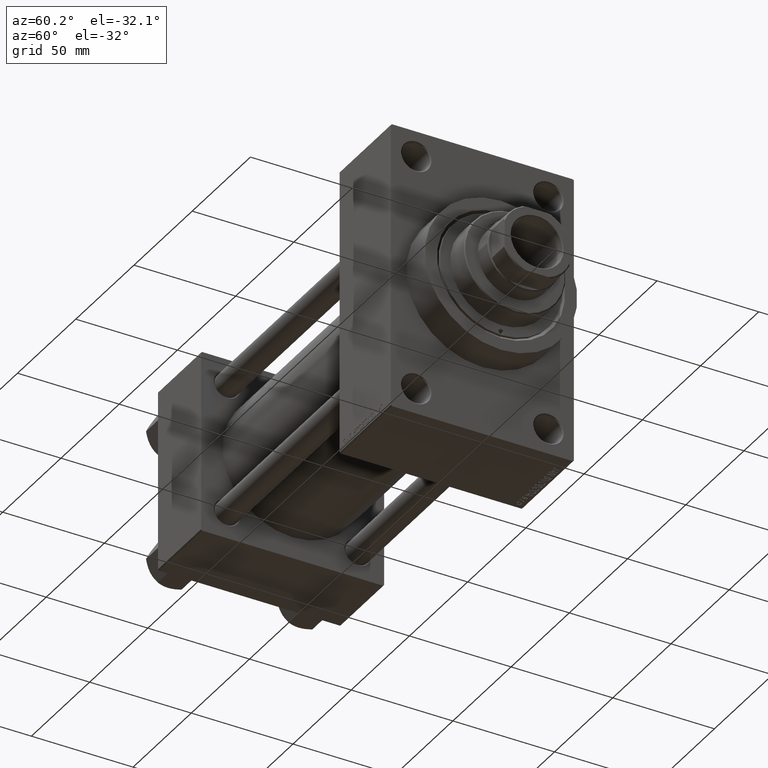
[diagram: clean part render]
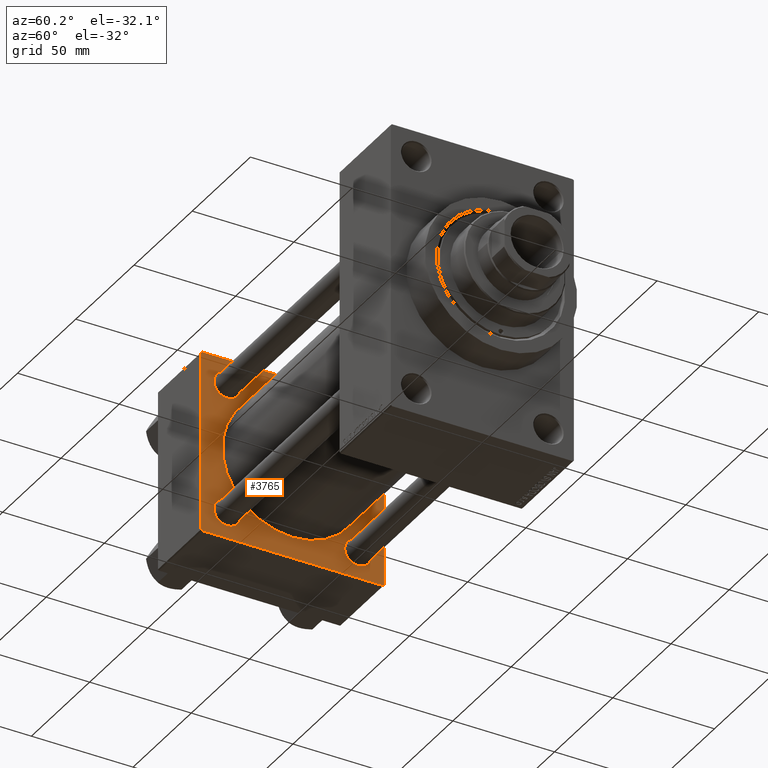
[diagram: same view with one face highlighted and labeled with its STEP entity id]
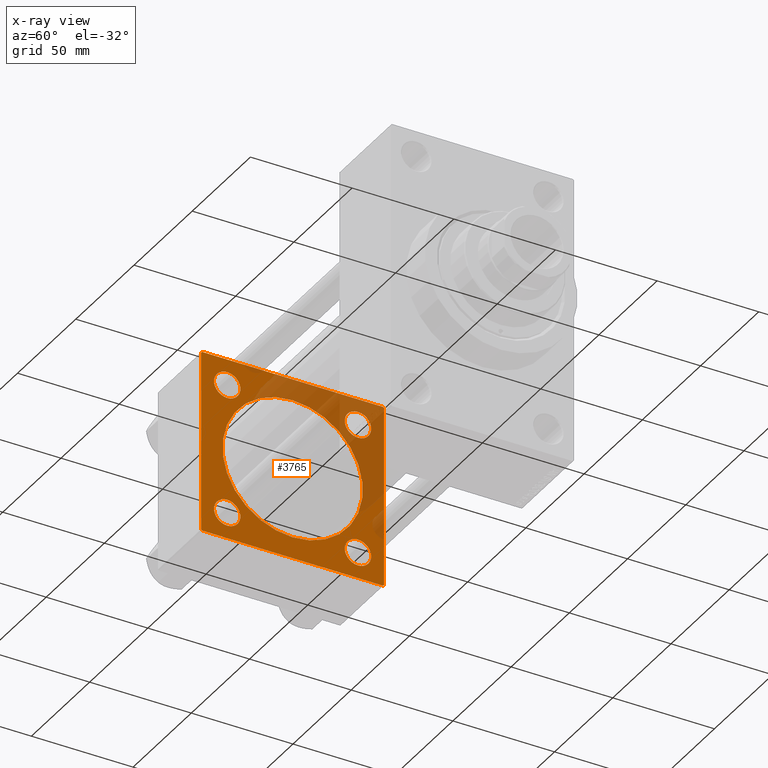
[diagram: x-ray of the same camera — body ghosted, the highlighted face saturated]
A machine part, auxiliary view. The second image highlights one B-rep face of the part: STEP entity #3765.
The next image is the same camera in x-ray: the body ghosted, the highlighted face saturated — about 33% of this face is hidden behind the body in this view.
In plain terms, the highlighted planar face has unit normal (-1, 0, 0).
Its self-contained STEP definition (entity closure, byte-faithful):
#116 = EDGE_CURVE ( 'NONE', #11362, #45274, #21560, .T. ) ;
#128 = ORIENTED_EDGE ( 'NONE', *, *, #8245, .F. ) ;
#181 = VERTEX_POINT ( 'NONE', #14818 ) ;
#754 = CIRCLE ( 'NONE', #28349, 34.50000000000000000 ) ;
#1284 = VERTEX_POINT ( 'NONE', #5814 ) ;
#1612 = CARTESIAN_POINT ( 'NONE',  ( 37.00000000000000000, 44.49999999999998579, 45.00000000000001421 ) ) ;
#1753 = AXIS2_PLACEMENT_3D ( 'NONE', #37219, #26642, #7959 ) ;
#1837 = DIRECTION ( 'NONE',  ( 1.000000000000000000, -0.000000000000000000, 0.000000000000000000 ) ) ;
#2292 = VECTOR ( 'NONE', #23799, 1000.000000000000114 ) ;
#2402 = VERTEX_POINT ( 'NONE', #23508 ) ;
#2668 = LINE ( 'NONE', #31222, #34024 ) ;
#2913 = DIRECTION ( 'NONE',  ( -1.000000000000000000, 0.000000000000000000, -0.000000000000000000 ) ) ;
#2963 = CARTESIAN_POINT ( 'NONE',  ( 37.00000000000000000, -32.14999999999997726, 32.15000000000001279 ) ) ;
#3623 = EDGE_CURVE ( 'NONE', #18095, #22669, #6383, .T. ) ;
#3765 = ADVANCED_FACE ( 'NONE', ( #10485, #46923, #18156, #36131, #47168, #6415 ), #32054, .F. ) ;
#4691 = CARTESIAN_POINT ( 'NONE',  ( 37.00000000000000000, -45.00000000000000000, -44.49999999999995737 ) ) ;
#5356 = EDGE_LOOP ( 'NONE', ( #45762, #17646 ) ) ;
#5814 = CARTESIAN_POINT ( 'NONE',  ( 37.00000000000000000, -45.00000000000000711, 44.49999999999997158 ) ) ;
#5848 = CIRCLE ( 'NONE', #34177, 6.500000000000033751 ) ;
#6050 = DIRECTION ( 'NONE',  ( -0.000000000000000000, -0.7071067811865425767, -0.7071067811865524577 ) ) ;
#6054 = CARTESIAN_POINT ( 'NONE',  ( 37.00000000000000000, -32.14999999999997726, -32.15000000000001279 ) ) ;
#6158 = AXIS2_PLACEMENT_3D ( 'NONE', #8517, #23142, #37771 ) ;
#6352 = EDGE_LOOP ( 'NONE', ( #7841, #7130 ) ) ;
#6377 = EDGE_CURVE ( 'NONE', #27571, #45890, #40583, .T. ) ;
#6383 = CIRCLE ( 'NONE', #12495, 6.500000000000033751 ) ;
#6415 = FACE_OUTER_BOUND ( 'NONE', #20793, .T. ) ;
#6783 = EDGE_CURVE ( 'NONE', #45890, #1284, #2668, .T. ) ;
#7130 = ORIENTED_EDGE ( 'NONE', *, *, #37662, .F. ) ;
#7199 = CARTESIAN_POINT ( 'NONE',  ( 37.00000000000000711, -2.602085213965210642E-15, 0.000000000000000000 ) ) ;
#7297 = CARTESIAN_POINT ( 'NONE',  ( 37.00000000000000000, -44.49999999999998579, -45.00000000000000000 ) ) ;
#7841 = ORIENTED_EDGE ( 'NONE', *, *, #20945, .F. ) ;
#7959 = DIRECTION ( 'NONE',  ( 0.000000000000000000, 0.000000000000000000, 1.000000000000000000 ) ) ;
#8245 = EDGE_CURVE ( 'NONE', #20188, #29826, #45051, .T. ) ;
#8517 = CARTESIAN_POINT ( 'NONE',  ( 37.00000000000000000, -32.14999999999997726, -32.15000000000001279 ) ) ;
#8837 = VECTOR ( 'NONE', #26336, 1000.000000000000000 ) ;
#8986 = VERTEX_POINT ( 'NONE', #38809 ) ;
#9966 = LINE ( 'NONE', #17628, #18679 ) ;
#10485 = FACE_BOUND ( 'NONE', #23896, .T. ) ;
#10826 = CARTESIAN_POINT ( 'NONE',  ( 37.00000000000000000, 44.99999999999998579, 45.00000000000001421 ) ) ;
#11362 = VERTEX_POINT ( 'NONE', #46404 ) ;
#11672 = ORIENTED_EDGE ( 'NONE', *, *, #20415, .T. ) ;
#11913 = ORIENTED_EDGE ( 'NONE', *, *, #22182, .T. ) ;
#12495 = AXIS2_PLACEMENT_3D ( 'NONE', #13850, #47183, #39043 ) ;
#13429 = VERTEX_POINT ( 'NONE', #29760 ) ;
#13710 = DIRECTION ( 'NONE',  ( 0.000000000000000000, 0.000000000000000000, 1.000000000000000000 ) ) ;
#13807 = CIRCLE ( 'NONE', #6158, 6.500000000000033751 ) ;
#13817 = EDGE_LOOP ( 'NONE', ( #25705, #26958 ) ) ;
#13836 = DIRECTION ( 'NONE',  ( -0.000000000000000000, 0.000000000000000000, 1.000000000000000000 ) ) ;
#13850 = CARTESIAN_POINT ( 'NONE',  ( 37.00000000000000000, -32.14999999999997726, 32.15000000000001279 ) ) ;
#14452 = CARTESIAN_POINT ( 'NONE',  ( 37.00000000000000000, -32.14999999999997726, 25.64999999999997726 ) ) ;
#14510 = CIRCLE ( 'NONE', #41316, 6.500000000000033751 ) ;
#14529 = CARTESIAN_POINT ( 'NONE',  ( 37.00000000000000000, 32.14999999999999147, -32.15000000000000568 ) ) ;
#14662 = CARTESIAN_POINT ( 'NONE',  ( 37.00000000000000000, -32.14999999999997726, 38.65000000000004832 ) ) ;
#14818 = CARTESIAN_POINT ( 'NONE',  ( 37.00000000000000000, 32.14999999999999147, 25.64999999999997016 ) ) ;
#16911 = ORIENTED_EDGE ( 'NONE', *, *, #19972, .T. ) ;
#17628 = CARTESIAN_POINT ( 'NONE',  ( 37.00000000000000000, 44.49999999999998579, 45.00000000000001421 ) ) ;
#17646 = ORIENTED_EDGE ( 'NONE', *, *, #22518, .T. ) ;
#18095 = VERTEX_POINT ( 'NONE', #14452 ) ;
#18156 = FACE_BOUND ( 'NONE', #27096, .T. ) ;
#18189 = CARTESIAN_POINT ( 'NONE',  ( 37.00000000000000000, 32.14999999999999147, -32.15000000000000568 ) ) ;
#18679 = VECTOR ( 'NONE', #27944, 1000.000000000000114 ) ;
#19017 = CARTESIAN_POINT ( 'NONE',  ( 37.00000000000000000, 44.49999999999998579, -44.99999999999998579 ) ) ;
#19613 = CARTESIAN_POINT ( 'NONE',  ( 37.00000000000000000, 32.14999999999999147, 38.65000000000004121 ) ) ;
#19972 = EDGE_CURVE ( 'NONE', #2402, #8986, #13807, .T. ) ;
#20188 = VERTEX_POINT ( 'NONE', #19017 ) ;
#20248 = AXIS2_PLACEMENT_3D ( 'NONE', #7199, #29721, #26119 ) ;
#20252 = EDGE_CURVE ( 'NONE', #26996, #29826, #33642, .T. ) ;
#20314 = CARTESIAN_POINT ( 'NONE',  ( 37.00000000000000711, -2.602085213965210642E-15, 0.000000000000000000 ) ) ;
#20415 = EDGE_CURVE ( 'NONE', #8986, #2402, #40622, .T. ) ;
#20793 = EDGE_LOOP ( 'NONE', ( #128, #30314, #35342, #42699, #40947, #27277, #11913, #33870 ) ) ;
#20945 = EDGE_CURVE ( 'NONE', #24386, #13429, #754, .T. ) ;
#21560 = CIRCLE ( 'NONE', #42245, 6.500000000000033751 ) ;
#21717 = DIRECTION ( 'NONE',  ( -1.000000000000000000, 0.000000000000000000, -0.000000000000000000 ) ) ;
#21911 = DIRECTION ( 'NONE',  ( 0.000000000000000000, 0.7071067811865474617, -0.7071067811865474617 ) ) ;
#22182 = EDGE_CURVE ( 'NONE', #1284, #26996, #27692, .T. ) ;
#22466 = EDGE_CURVE ( 'NONE', #20188, #29258, #27395, .T. ) ;
#22518 = EDGE_CURVE ( 'NONE', #22728, #181, #14510, .T. ) ;
#22669 = VERTEX_POINT ( 'NONE', #14662 ) ;
#22728 = VERTEX_POINT ( 'NONE', #19613 ) ;
#22981 = AXIS2_PLACEMENT_3D ( 'NONE', #6054, #2913, #13710 ) ;
#23142 = DIRECTION ( 'NONE',  ( -1.000000000000000000, 0.000000000000000000, -0.000000000000000000 ) ) ;
#23508 = CARTESIAN_POINT ( 'NONE',  ( 37.00000000000000000, -32.14999999999997726, -38.65000000000004832 ) ) ;
#23799 = DIRECTION ( 'NONE',  ( -0.000000000000000000, 0.7071067811865474617, 0.7071067811865474617 ) ) ;
#23896 = EDGE_LOOP ( 'NONE', ( #16911, #11672 ) ) ;
#24386 = VERTEX_POINT ( 'NONE', #37166 ) ;
#25200 = CARTESIAN_POINT ( 'NONE',  ( 37.00000000000000000, 32.14999999999999147, 32.15000000000000568 ) ) ;
#25439 = DIRECTION ( 'NONE',  ( -1.000000000000000000, 0.000000000000000000, -0.000000000000000000 ) ) ;
#25701 = CARTESIAN_POINT ( 'NONE',  ( 37.00000000000000000, 44.99999999999998579, 45.00000000000001421 ) ) ;
#25705 = ORIENTED_EDGE ( 'NONE', *, *, #44642, .T. ) ;
#26119 = DIRECTION ( 'NONE',  ( 0.000000000000000000, 0.000000000000000000, 1.000000000000000000 ) ) ;
#26336 = DIRECTION ( 'NONE',  ( 0.000000000000000000, -1.000000000000000000, -1.541976423090495633E-16 ) ) ;
#26642 = DIRECTION ( 'NONE',  ( -1.000000000000000000, 0.000000000000000000, -0.000000000000000000 ) ) ;
#26958 = ORIENTED_EDGE ( 'NONE', *, *, #116, .T. ) ;
#26996 = VERTEX_POINT ( 'NONE', #4691 ) ;
#27096 = EDGE_LOOP ( 'NONE', ( #39568, #46758 ) ) ;
#27277 = ORIENTED_EDGE ( 'NONE', *, *, #6783, .T. ) ;
#27395 = LINE ( 'NONE', #30756, #2292 ) ;
#27571 = VERTEX_POINT ( 'NONE', #1612 ) ;
#27692 = LINE ( 'NONE', #31529, #38271 ) ;
#27944 = DIRECTION ( 'NONE',  ( 0.000000000000000000, -0.7071067811865474617, 0.7071067811865474617 ) ) ;
#27979 = DIRECTION ( 'NONE',  ( 0.000000000000000000, 0.000000000000000000, 1.000000000000000000 ) ) ;
#28349 = AXIS2_PLACEMENT_3D ( 'NONE', #20314, #1837, #27979 ) ;
#28939 = DIRECTION ( 'NONE',  ( -1.000000000000000000, 0.000000000000000000, -0.000000000000000000 ) ) ;
#29258 = VERTEX_POINT ( 'NONE', #43711 ) ;
#29721 = DIRECTION ( 'NONE',  ( 1.000000000000000000, -0.000000000000000000, 0.000000000000000000 ) ) ;
#29760 = CARTESIAN_POINT ( 'NONE',  ( 37.00000000000000711, 1.622946243093158675E-15, -34.50000000000000000 ) ) ;
#29826 = VERTEX_POINT ( 'NONE', #30329 ) ;
#30314 = ORIENTED_EDGE ( 'NONE', *, *, #22466, .T. ) ;
#30329 = CARTESIAN_POINT ( 'NONE',  ( 37.00000000000000000, -44.49999999999995737, -45.00000000000000000 ) ) ;
#30756 = CARTESIAN_POINT ( 'NONE',  ( 37.00000000000000000, 44.99999999999998579, -44.49999999999998579 ) ) ;
#31222 = CARTESIAN_POINT ( 'NONE',  ( 37.00000000000000000, -45.00000000000000711, 44.49999999999997158 ) ) ;
#31529 = CARTESIAN_POINT ( 'NONE',  ( 37.00000000000000000, -45.00000000000000711, 45.00000000000000000 ) ) ;
#32054 = PLANE ( 'NONE',  #40851 ) ;
#32149 = CARTESIAN_POINT ( 'NONE',  ( 37.00000000000000000, 32.14999999999999147, -38.65000000000004121 ) ) ;
#32882 = DIRECTION ( 'NONE',  ( 0.000000000000000000, 0.000000000000000000, -1.000000000000000000 ) ) ;
#33122 = EDGE_CURVE ( 'NONE', #45336, #29258, #47034, .T. ) ;
#33642 = LINE ( 'NONE', #7297, #36783 ) ;
#33870 = ORIENTED_EDGE ( 'NONE', *, *, #20252, .T. ) ;
#34005 = CARTESIAN_POINT ( 'NONE',  ( 37.00000000000000000, 44.99999999999998579, -44.99999999999998579 ) ) ;
#34024 = VECTOR ( 'NONE', #6050, 1000.000000000000114 ) ;
#34158 = EDGE_CURVE ( 'NONE', #181, #22728, #43127, .T. ) ;
#34177 = AXIS2_PLACEMENT_3D ( 'NONE', #14529, #21717, #40194 ) ;
#34693 = VECTOR ( 'NONE', #32882, 1000.000000000000000 ) ;
#34905 = CIRCLE ( 'NONE', #36449, 6.500000000000033751 ) ;
#35342 = ORIENTED_EDGE ( 'NONE', *, *, #33122, .F. ) ;
#35849 = EDGE_CURVE ( 'NONE', #45336, #27571, #9966, .T. ) ;
#36131 = FACE_BOUND ( 'NONE', #5356, .T. ) ;
#36449 = AXIS2_PLACEMENT_3D ( 'NONE', #2963, #46846, #43720 ) ;
#36654 = DIRECTION ( 'NONE',  ( 0.000000000000000000, 0.000000000000000000, 1.000000000000000000 ) ) ;
#36783 = VECTOR ( 'NONE', #21911, 1000.000000000000114 ) ;
#36985 = DIRECTION ( 'NONE',  ( 0.000000000000000000, -1.000000000000000000, -1.541976423090495387E-16 ) ) ;
#37166 = CARTESIAN_POINT ( 'NONE',  ( 37.00000000000000711, -2.602085213965210642E-15, 34.50000000000000000 ) ) ;
#37219 = CARTESIAN_POINT ( 'NONE',  ( 37.00000000000000000, 32.14999999999999147, 32.15000000000000568 ) ) ;
#37662 = EDGE_CURVE ( 'NONE', #13429, #24386, #40946, .T. ) ;
#37771 = DIRECTION ( 'NONE',  ( 0.000000000000000000, 0.000000000000000000, 1.000000000000000000 ) ) ;
#38271 = VECTOR ( 'NONE', #41861, 1000.000000000000000 ) ;
#38809 = CARTESIAN_POINT ( 'NONE',  ( 37.00000000000000000, -32.14999999999997726, -25.64999999999997726 ) ) ;
#39043 = DIRECTION ( 'NONE',  ( 0.000000000000000000, 0.000000000000000000, 1.000000000000000000 ) ) ;
#39373 = DIRECTION ( 'NONE',  ( 0.000000000000000000, 0.000000000000000000, 1.000000000000000000 ) ) ;
#39568 = ORIENTED_EDGE ( 'NONE', *, *, #3623, .T. ) ;
#40194 = DIRECTION ( 'NONE',  ( 0.000000000000000000, 0.000000000000000000, 1.000000000000000000 ) ) ;
#40251 = DIRECTION ( 'NONE',  ( -1.000000000000000000, 0.000000000000000000, -0.000000000000000000 ) ) ;
#40554 = CARTESIAN_POINT ( 'NONE',  ( 37.00000000000000000, 44.99999999999998579, 44.50000000000001421 ) ) ;
#40583 = LINE ( 'NONE', #25701, #44784 ) ;
#40622 = CIRCLE ( 'NONE', #22981, 6.500000000000033751 ) ;
#40851 = AXIS2_PLACEMENT_3D ( 'NONE', #46690, #28939, #13836 ) ;
#40946 = CIRCLE ( 'NONE', #20248, 34.50000000000000000 ) ;
#40947 = ORIENTED_EDGE ( 'NONE', *, *, #6377, .T. ) ;
#41316 = AXIS2_PLACEMENT_3D ( 'NONE', #25200, #25439, #39373 ) ;
#41861 = DIRECTION ( 'NONE',  ( 0.000000000000000000, 7.709882115452476934E-17, -1.000000000000000000 ) ) ;
#42245 = AXIS2_PLACEMENT_3D ( 'NONE', #18189, #40251, #36654 ) ;
#42699 = ORIENTED_EDGE ( 'NONE', *, *, #35849, .T. ) ;
#43127 = CIRCLE ( 'NONE', #1753, 6.500000000000033751 ) ;
#43711 = CARTESIAN_POINT ( 'NONE',  ( 37.00000000000000000, 44.99999999999998579, -44.49999999999995737 ) ) ;
#43720 = DIRECTION ( 'NONE',  ( 0.000000000000000000, 0.000000000000000000, 1.000000000000000000 ) ) ;
#43902 = EDGE_CURVE ( 'NONE', #22669, #18095, #34905, .T. ) ;
#44642 = EDGE_CURVE ( 'NONE', #45274, #11362, #5848, .T. ) ;
#44784 = VECTOR ( 'NONE', #36985, 1000.000000000000000 ) ;
#45051 = LINE ( 'NONE', #34005, #8837 ) ;
#45274 = VERTEX_POINT ( 'NONE', #32149 ) ;
#45336 = VERTEX_POINT ( 'NONE', #40554 ) ;
#45646 = CARTESIAN_POINT ( 'NONE',  ( 37.00000000000000000, -44.49999999999995737, 45.00000000000000000 ) ) ;
#45762 = ORIENTED_EDGE ( 'NONE', *, *, #34158, .T. ) ;
#45890 = VERTEX_POINT ( 'NONE', #45646 ) ;
#46404 = CARTESIAN_POINT ( 'NONE',  ( 37.00000000000000000, 32.14999999999999147, -25.64999999999997016 ) ) ;
#46690 = CARTESIAN_POINT ( 'NONE',  ( 37.00000000000000000, 0.000000000000000000, 0.000000000000000000 ) ) ;
#46758 = ORIENTED_EDGE ( 'NONE', *, *, #43902, .T. ) ;
#46846 = DIRECTION ( 'NONE',  ( -1.000000000000000000, 0.000000000000000000, -0.000000000000000000 ) ) ;
#46923 = FACE_BOUND ( 'NONE', #13817, .T. ) ;
#47034 = LINE ( 'NONE', #10826, #34693 ) ;
#47168 = FACE_BOUND ( 'NONE', #6352, .T. ) ;
#47183 = DIRECTION ( 'NONE',  ( -1.000000000000000000, 0.000000000000000000, -0.000000000000000000 ) ) ;